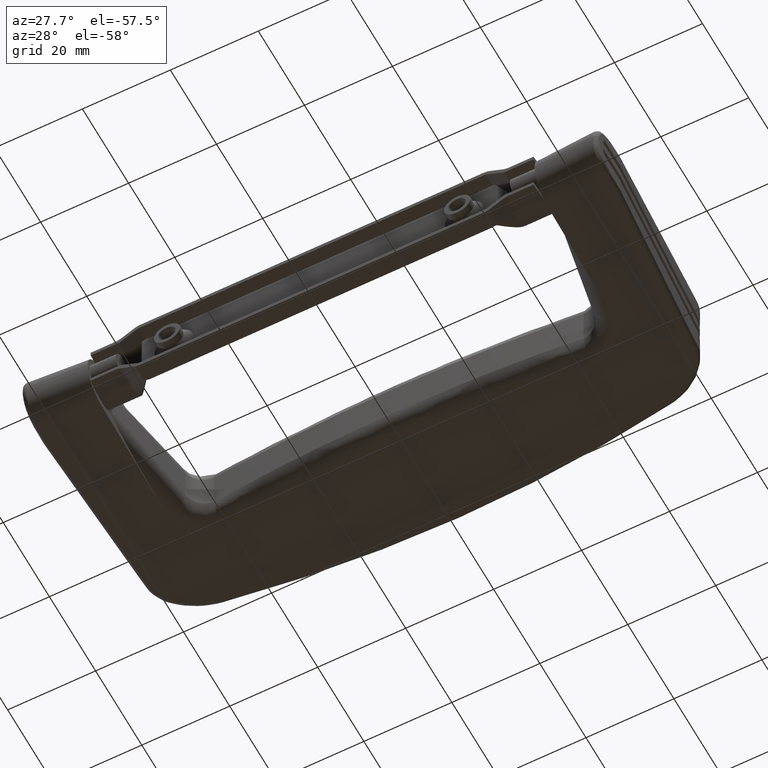
[diagram: clean part render]
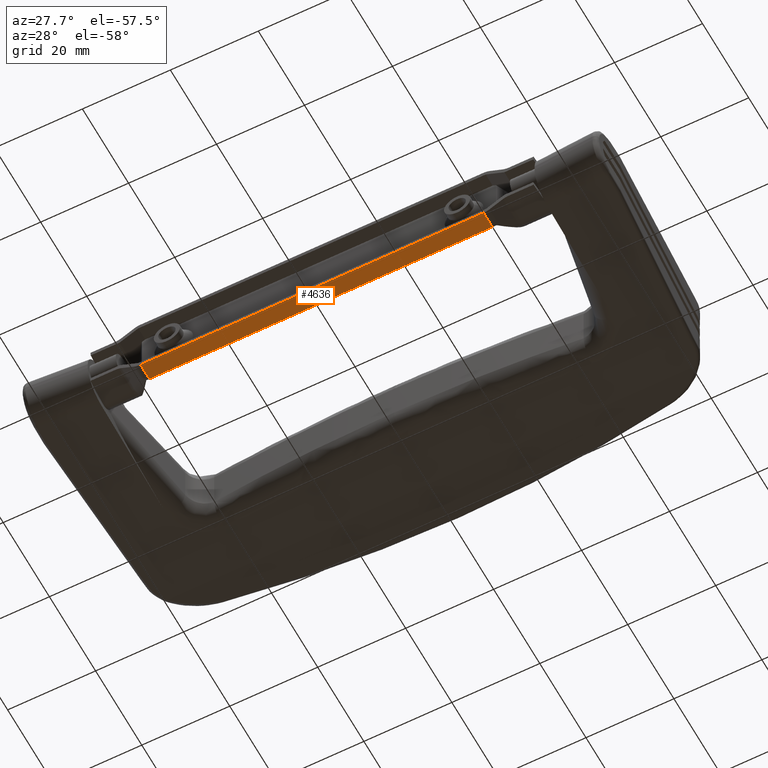
[diagram: same view with one face highlighted and labeled with its STEP entity id]
A machine part, auxiliary view. The second image highlights one B-rep face of the part: STEP entity #4636.
In plain terms, the highlighted planar face has unit normal (-0, 0, -1).
Its self-contained STEP definition (entity closure, byte-faithful):
#129=PLANE('',#5123);
#227=ELLIPSE('',#4982,7.0891023209491,2.8);
#257=ELLIPSE('',#5089,7.0891023209491,2.8);
#664=FACE_OUTER_BOUND('',#943,.T.);
#943=EDGE_LOOP('',(#4205,#4206,#4207,#4208,#4209,#4210));
#1203=LINE('',#9030,#1529);
#1256=LINE('',#9577,#1582);
#1272=LINE('',#10006,#1598);
#1273=LINE('',#10009,#1599);
#1529=VECTOR('',#6106,3.73414683607249);
#1582=VECTOR('',#6303,77.6973587651712);
#1598=VECTOR('',#6389,3.73414683607249);
#1599=VECTOR('',#6394,78.0097439588858);
#2084=VERTEX_POINT('',#8602);
#2085=VERTEX_POINT('',#8621);
#2113=VERTEX_POINT('',#9028);
#2180=VERTEX_POINT('',#9573);
#2181=VERTEX_POINT('',#9595);
#2210=VERTEX_POINT('',#10005);
#2682=EDGE_CURVE('',#2084,#2085,#227,.T.);
#2731=EDGE_CURVE('',#2085,#2113,#1203,.T.);
#2836=EDGE_CURVE('',#2084,#2180,#1256,.T.);
#2840=EDGE_CURVE('',#2180,#2181,#257,.T.);
#2888=EDGE_CURVE('',#2181,#2210,#1272,.T.);
#2890=EDGE_CURVE('',#2210,#2113,#1273,.T.);
#4205=ORIENTED_EDGE('',*,*,#2836,.F.);
#4206=ORIENTED_EDGE('',*,*,#2682,.T.);
#4207=ORIENTED_EDGE('',*,*,#2731,.T.);
#4208=ORIENTED_EDGE('',*,*,#2890,.F.);
#4209=ORIENTED_EDGE('',*,*,#2888,.F.);
#4210=ORIENTED_EDGE('',*,*,#2840,.F.);
#4636=ADVANCED_FACE('',(#664),#129,.T.);
#4982=AXIS2_PLACEMENT_3D('',#8624,#6026,#6027);
#5089=AXIS2_PLACEMENT_3D('',#9599,#6309,#6310);
#5123=AXIS2_PLACEMENT_3D('',#10008,#6392,#6393);
#6026=DIRECTION('center_axis',(0.,1.,0.));
#6027=DIRECTION('ref_axis',(0.812087460526197,0.,0.583535737085666));
#6106=DIRECTION('',(0.,0.,-1.));
#6303=DIRECTION('',(-1.,0.,0.));
#6309=DIRECTION('center_axis',(0.,-1.,0.));
#6310=DIRECTION('ref_axis',(-0.812087460526197,0.,0.583535737085666));
#6389=DIRECTION('',(0.,0.,-1.));
#6392=DIRECTION('center_axis',(0.,1.,0.));
#6393=DIRECTION('ref_axis',(-1.,0.,0.));
#6394=DIRECTION('',(1.,0.,0.));
#8602=CARTESIAN_POINT('',(38.8486793825856,7.5,3.80000000000001));
#8621=CARTESIAN_POINT('',(39.0048719794429,7.5,3.73414683607249));
#8624=CARTESIAN_POINT('Origin',(33.715983090554,7.5,-0.786210869443251));
#9028=CARTESIAN_POINT('',(39.0048719794429,7.5,0.));
#9030=CARTESIAN_POINT('',(39.0048719794429,7.5,5.));
#9573=CARTESIAN_POINT('',(-38.8486793825856,7.5,3.80000000000001));
#9577=CARTESIAN_POINT('',(0.,7.5,3.8));
#9595=CARTESIAN_POINT('',(-39.0048719794429,7.5,3.73414683607249));
#9599=CARTESIAN_POINT('Origin',(-33.715983090554,7.5,-0.786210869443251));
#10005=CARTESIAN_POINT('',(-39.0048719794429,7.5,0.));
#10006=CARTESIAN_POINT('',(-39.0048719794429,7.5,5.));
#10008=CARTESIAN_POINT('Origin',(0.,7.5,0.));
#10009=CARTESIAN_POINT('',(-50.75,7.5,0.));